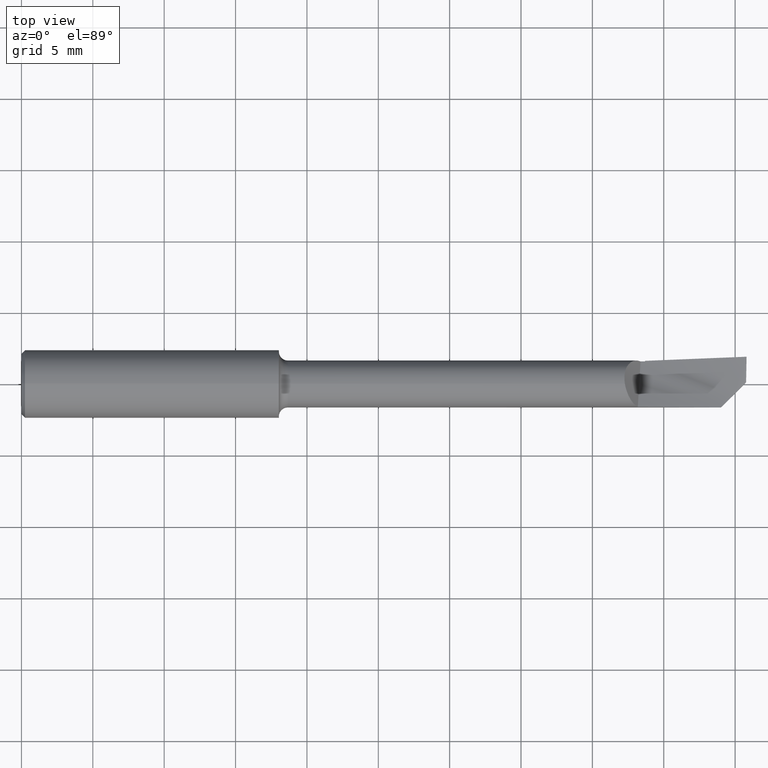
[diagram: clean part render]
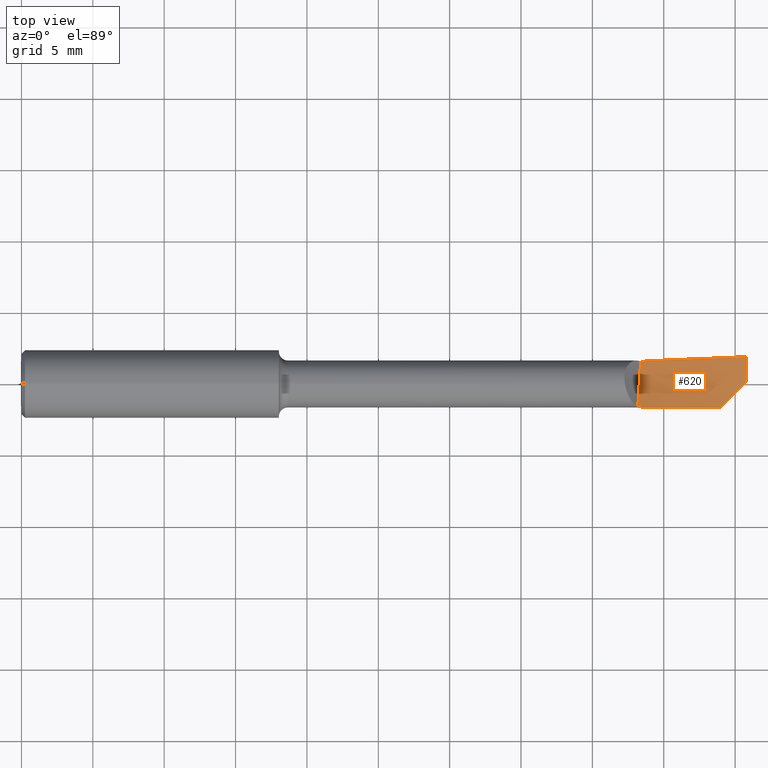
[diagram: same view with one face highlighted and labeled with its STEP entity id]
A machine part, top view. The second image highlights one B-rep face of the part: STEP entity #620.
In plain terms, the highlighted face is a freeform B-spline surface patch.
Its self-contained STEP definition (entity closure, byte-faithful):
#4 = CARTESIAN_POINT ( 'NONE',  ( 1.251777777777779432, -0.04743788576241883548, 0.01849630583974562481 ) ) ;
#14 = EDGE_LOOP ( 'NONE', ( #28, #680, #507, #502, #491, #319, #748 ) ) ;
#20 = CARTESIAN_POINT ( 'NONE',  ( 1.998690112278779241, 0.005006379540724001202, -0.005675423620969897651 ) ) ;
#25 = B_SPLINE_CURVE_WITH_KNOTS ( 'NONE', 3,
 ( #260, #616, #672, #563 ),
 .UNSPECIFIED., .F., .F.,
 ( 4, 4 ),
 ( 8.673970620855088417E-18, 0.001785651175697139208 ),
 .UNSPECIFIED. ) ;
#28 = ORIENTED_EDGE ( 'NONE', *, *, #712, .F. ) ;
#38 = CARTESIAN_POINT ( 'NONE',  ( 1.699977625303844553, -0.06329835092067141733, 0.01477561405571807193 ) ) ;
#56 = CARTESIAN_POINT ( 'NONE',  ( 1.812944444444444692, 0.04720366949543100543, -0.02071988357100934888 ) ) ;
#59 = CARTESIAN_POINT ( 'NONE',  ( 1.999999999999999778, 0.04924991155350778166, -0.01291946389357409748 ) ) ;
#63 = CARTESIAN_POINT ( 'NONE',  ( 1.812944444444444914, 0.1460343190046418660, -0.007374320327842622154 ) ) ;
#66 = CARTESIAN_POINT ( 'NONE',  ( 1.906692579083983485, 0.07226879145171034857, -0.006399015445433485320 ) ) ;
#70 = CARTESIAN_POINT ( 'NONE',  ( 1.719999999999999973, 0.06286089002485090171, -0.01653809255275878048 ) ) ;
#78 = CARTESIAN_POINT ( 'NONE',  ( 1.998690112278779241, 0.005006379540724001202, -0.005675423620969897651 ) ) ;
#86 = CARTESIAN_POINT ( 'NONE',  ( 1.705057494486220016, 0.01961224475334205977, -0.01235505082219080959 ) ) ;
#96 = VERTEX_POINT ( 'NONE', #353 ) ;
#101 = B_SPLINE_CURVE_WITH_KNOTS ( 'NONE', 3,
 ( #20, #434, #315, #557 ),
 .UNSPECIFIED., .F., .F.,
 ( 4, 4 ),
 ( 4.685496789594792856E-05, 0.002568357804652190643 ),
 .UNSPECIFIED. ) ;
#127 = CARTESIAN_POINT ( 'NONE',  ( 1.438833333333334519, -0.1224787625711141470, 0.07987086857231359693 ) ) ;
#142 = EDGE_CURVE ( 'NONE', #96, #193, #624, .T. ) ;
#149 = VERTEX_POINT ( 'NONE', #306 ) ;
#150 =( BOUNDED_CURVE ( )  B_SPLINE_CURVE ( 3, ( #396, #393, #679, #738 ),
 .UNSPECIFIED., .F., .T. ) 
 B_SPLINE_CURVE_WITH_KNOTS ( ( 4, 4 ),
 ( 0.003652322249826464584, 0.003685822286269421419 ),
 .UNSPECIFIED. ) 
 CURVE ( )  GEOMETRIC_REPRESENTATION_ITEM ( )  RATIONAL_B_SPLINE_CURVE ( ( 0.9785329928491668383, 0.9785892212860342054, 0.9786460211262746345, 0.9787033923698881255 ) ) 
 REPRESENTATION_ITEM ( '' )  );
#153 = CARTESIAN_POINT ( 'NONE',  ( 1.719999999999999973, 0.06286089002485090171, -0.01653809255275878395 ) ) ;
#183 = CARTESIAN_POINT ( 'NONE',  ( 1.719999999999999973, 0.06417449704456136550, -0.01667418088645498953 ) ) ;
#193 = VERTEX_POINT ( 'NONE', #183 ) ;
#203 = VERTEX_POINT ( 'NONE', #361 ) ;
#213 = EDGE_CURVE ( 'NONE', #149, #555, #751, .T. ) ;
#233 = FACE_OUTER_BOUND ( 'NONE', #14, .T. ) ;
#237 = CARTESIAN_POINT ( 'NONE',  ( 1.625888888888889383, -0.05083178321125149390, 0.002931919318473395937 ) ) ;
#247 = CARTESIAN_POINT ( 'NONE',  ( 1.707578098285200463, 0.06268507833287290110, -0.01719246795552008961 ) ) ;
#256 =( BOUNDED_SURFACE ( )  B_SPLINE_SURFACE ( 3, 2, ( 
 ( #654, #477, #582, #127, #470 ),
 ( #591, #407, #237, #538, #4 ),
 ( #59, #56, #644, #347, #711 ),
 ( #297, #63, #287, #304, #301 ) ),
 .UNSPECIFIED., .F., .F., .F. ) 
 B_SPLINE_SURFACE_WITH_KNOTS ( ( 4, 4 ),
 ( 3, 2, 3 ),
 ( 0.000000000000000000, 1.000000000000000000 ),
 ( 0.000000000000000000, 0.5000000000000000000, 1.000000000000000000 ),
 .UNSPECIFIED. ) 
 GEOMETRIC_REPRESENTATION_ITEM ( )  RATIONAL_B_SPLINE_SURFACE ( (
 ( 1.000000000000000000, 0.9876883405951377704, 1.000000000000000000, 0.9876883405951377704, 1.000000000000000000),
 ( 0.9719137589650621578, 0.9599478877937849264, 0.9719137589650621578, 0.9599478877937849264, 0.9719137589650621578),
 ( 0.9719137589650621578, 0.9599478877937849264, 0.9719137589650621578, 0.9599478877937849264, 0.9719137589650621578),
 ( 1.000000000000000000, 0.9876883405951377704, 1.000000000000000000, 0.9876883405951377704, 1.000000000000000000) ) ) 
 REPRESENTATION_ITEM ( '' )  SURFACE ( )  );
#260 = CARTESIAN_POINT ( 'NONE',  ( 2.000000000000000000, 0.07524999999999999745, 0.000000000000000000 ) ) ;
#287 = CARTESIAN_POINT ( 'NONE',  ( 1.625888888888889827, 0.1413212096967318421, -0.02975740103164592476 ) ) ;
#288 = VERTEX_POINT ( 'NONE', #78 ) ;
#297 = CARTESIAN_POINT ( 'NONE',  ( 2.000000000000000000, 0.1435999999999998389, 0.01536968530276076016 ) ) ;
#299 = CARTESIAN_POINT ( 'NONE',  ( 1.713786355346465617, 0.06277468955886604529, -0.01686573844028011263 ) ) ;
#301 = CARTESIAN_POINT ( 'NONE',  ( 1.251777777777779654, 0.1252089147455814899, -0.07197162562107072004 ) ) ;
#304 = CARTESIAN_POINT ( 'NONE',  ( 1.438833333333334519, 0.1366081003888217904, -0.05214048173544921089 ) ) ;
#306 = CARTESIAN_POINT ( 'NONE',  ( 1.707578098285200463, 0.06268507833287290110, -0.01719246795552008961 ) ) ;
#315 = CARTESIAN_POINT ( 'NONE',  ( 1.951875625226384914, -0.04180810751166970374, -0.003282733520795549399 ) ) ;
#319 = ORIENTED_EDGE ( 'NONE', *, *, #495, .F. ) ;
#340 = B_SPLINE_CURVE_WITH_KNOTS ( 'NONE', 3,
 ( #247, #86, #500, #487 ),
 .UNSPECIFIED., .F., .F.,
 ( 4, 4 ),
 ( 0.000000000000000000, 1.000000000000000000 ),
 .UNSPECIFIED. ) ;
#347 = CARTESIAN_POINT ( 'NONE',  ( 1.438833333333334519, 0.03849056132176025685, -0.03429251635803180764 ) ) ;
#353 = CARTESIAN_POINT ( 'NONE',  ( 2.000000000000000000, 0.07524999999999999745, 0.000000000000000000 ) ) ;
#361 = CARTESIAN_POINT ( 'NONE',  ( 1.928729976218956255, -0.06495375651909796044, 0.002451431022431828106 ) ) ;
#362 = EDGE_CURVE ( 'NONE', #288, #203, #101, .T. ) ;
#393 = CARTESIAN_POINT ( 'NONE',  ( 1.719999999999999307, 0.06329871170153968107, -0.01658403491725191775 ) ) ;
#396 = CARTESIAN_POINT ( 'NONE',  ( 1.719999999999999973, 0.06286089002485090171, -0.01653809255275878395 ) ) ;
#404 = CARTESIAN_POINT ( 'NONE',  ( 1.813355656677551497, 0.06848158725199793295, -0.01195559136056681404 ) ) ;
#407 = CARTESIAN_POINT ( 'NONE',  ( 1.812944444444444692, -0.05129615361158460646, -0.005119044216138833071 ) ) ;
#434 = CARTESIAN_POINT ( 'NONE',  ( 1.975196143555258965, -0.01848758918279498273, -0.005983480470463949270 ) ) ;
#435 = VERTEX_POINT ( 'NONE', #460 ) ;
#460 = CARTESIAN_POINT ( 'NONE',  ( 1.699977625303844553, -0.06329835092067141733, 0.01477561405571807193 ) ) ;
#470 = CARTESIAN_POINT ( 'NONE',  ( 1.251777777777779654, -0.1071407660389031985, 0.09684029883732739319 ) ) ;
#477 = CARTESIAN_POINT ( 'NONE',  ( 1.812944444444444914, -0.1411656809953578673, 0.03811369093336414854 ) ) ;
#487 = CARTESIAN_POINT ( 'NONE',  ( 1.699977625303844553, -0.06329835092067141733, 0.01477561405571807193 ) ) ;
#489 = EDGE_CURVE ( 'NONE', #555, #193, #150, .T. ) ;
#491 = ORIENTED_EDGE ( 'NONE', *, *, #687, .T. ) ;
#495 = EDGE_CURVE ( 'NONE', #203, #435, #530, .T. ) ;
#500 = CARTESIAN_POINT ( 'NONE',  ( 1.702538117706393406, -0.02313021388761798969, -0.001509987329134619260 ) ) ;
#501 = CARTESIAN_POINT ( 'NONE',  ( 1.928729976218956255, -0.06495375651909796044, 0.002451431022431828106 ) ) ;
#502 = ORIENTED_EDGE ( 'NONE', *, *, #213, .F. ) ;
#507 = ORIENTED_EDGE ( 'NONE', *, *, #489, .F. ) ;
#530 =( BOUNDED_CURVE ( )  B_SPLINE_CURVE ( 2, ( #501, #628, #38 ),
 .UNSPECIFIED., .F., .T. ) 
 B_SPLINE_CURVE_WITH_KNOTS ( ( 3, 3 ),
 ( 0.09584287386699438804, 0.4003872126215907157 ),
 .UNSPECIFIED. ) 
 CURVE ( )  GEOMETRIC_REPRESENTATION_ITEM ( )  RATIONAL_B_SPLINE_CURVE ( ( 0.9793538035410735976, 0.9748078979038108383, 0.9792426333894664880 ) ) 
 REPRESENTATION_ITEM ( '' )  );
#538 = CARTESIAN_POINT ( 'NONE',  ( 1.438833333333334519, -0.05036741281091839523, 0.01098288285308562061 ) ) ;
#555 = VERTEX_POINT ( 'NONE', #153 ) ;
#557 = CARTESIAN_POINT ( 'NONE',  ( 1.928729976218956255, -0.06495375651909796044, 0.002451431022431828106 ) ) ;
#563 = CARTESIAN_POINT ( 'NONE',  ( 1.998690112278779241, 0.005006379540724001202, -0.005675423620969897651 ) ) ;
#582 = CARTESIAN_POINT ( 'NONE',  ( 1.625888888888889827, -0.1318222217832359933, 0.05899227975283887621 ) ) ;
#591 = CARTESIAN_POINT ( 'NONE',  ( 1.999999999999999778, -0.04924991155350781635, -0.01291946389357408013 ) ) ;
#616 = CARTESIAN_POINT ( 'NONE',  ( 1.999353402839874505, 0.05185288937057529191, -0.003603032986946256427 ) ) ;
#620 = ADVANCED_FACE ( 'NONE', ( #233 ), #256, .T. ) ;
#624 = B_SPLINE_CURVE_WITH_KNOTS ( 'NONE', 3,
 ( #701, #66, #404, #756 ),
 .UNSPECIFIED., .F., .F.,
 ( 4, 4 ),
 ( 7.480178564007316979E-21, 0.007130276984543003176 ),
 .UNSPECIFIED. ) ;
#628 = CARTESIAN_POINT ( 'NONE',  ( 1.814366814679382323, -0.06471819013958940436, 0.008693059327969099304 ) ) ;
#644 = CARTESIAN_POINT ( 'NONE',  ( 1.625888888888889383, 0.04284711540859562767, -0.02750619996452057306 ) ) ;
#654 = CARTESIAN_POINT ( 'NONE',  ( 2.000000000000000000, -0.1435999999999998666, 0.01536968530276076016 ) ) ;
#672 = CARTESIAN_POINT ( 'NONE',  ( 1.998920370822781400, 0.02843805061049125421, -0.005465523720710000269 ) ) ;
#679 = CARTESIAN_POINT ( 'NONE',  ( 1.719999999999999307, 0.06373658096650836047, -0.01662939768799714946 ) ) ;
#680 = ORIENTED_EDGE ( 'NONE', *, *, #142, .T. ) ;
#687 = EDGE_CURVE ( 'NONE', #149, #435, #340, .T. ) ;
#701 = CARTESIAN_POINT ( 'NONE',  ( 2.000000000000000000, 0.07524999999999999745, 0.000000000000000000 ) ) ;
#708 = CARTESIAN_POINT ( 'NONE',  ( 1.707578098285200463, 0.06268507833287290110, -0.01719246795552008961 ) ) ;
#711 = CARTESIAN_POINT ( 'NONE',  ( 1.251777777777779432, 0.03225014507408292819, -0.03940043753597553822 ) ) ;
#712 = EDGE_CURVE ( 'NONE', #96, #288, #25, .T. ) ;
#738 = CARTESIAN_POINT ( 'NONE',  ( 1.719999999999999973, 0.06417449704456136550, -0.01667418088645498953 ) ) ;
#748 = ORIENTED_EDGE ( 'NONE', *, *, #362, .F. ) ;
#751 =( BOUNDED_CURVE ( )  B_SPLINE_CURVE ( 2, ( #708, #299, #70 ),
 .UNSPECIFIED., .F., .T. ) 
 B_SPLINE_CURVE_WITH_KNOTS ( ( 3, 3 ),
 ( 0.6097718758355035185, 0.6263572643317619759 ),
 .UNSPECIFIED. ) 
 CURVE ( )  GEOMETRIC_REPRESENTATION_ITEM ( )  RATIONAL_B_SPLINE_CURVE ( ( 0.9789567561682523955, 0.9787315568591534731, 0.9785329928491626195 ) ) 
 REPRESENTATION_ITEM ( '' )  );
#756 = CARTESIAN_POINT ( 'NONE',  ( 1.719999999999999973, 0.06417449704456136550, -0.01667418088645498953 ) ) ;